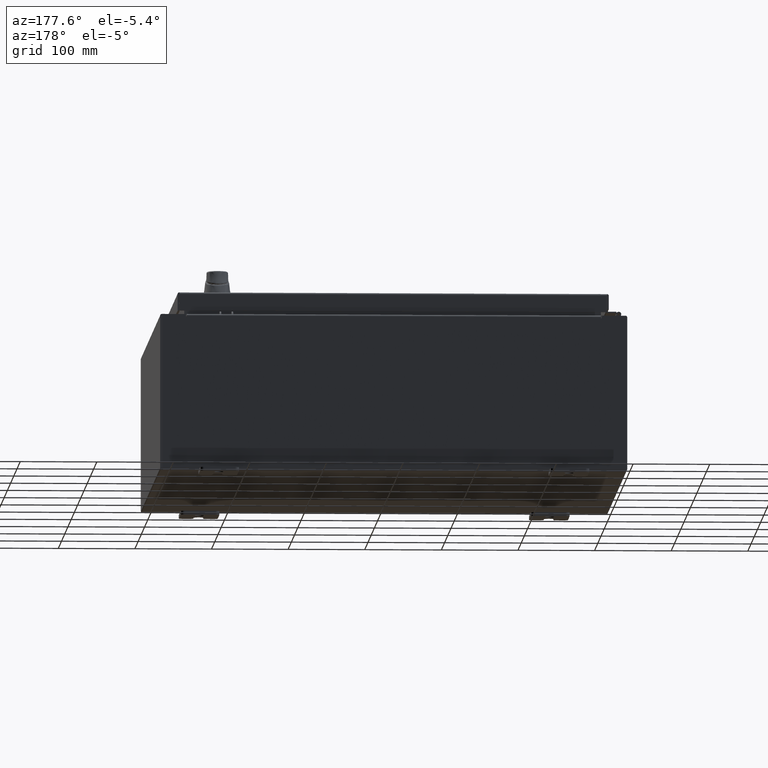
[diagram: clean part render]
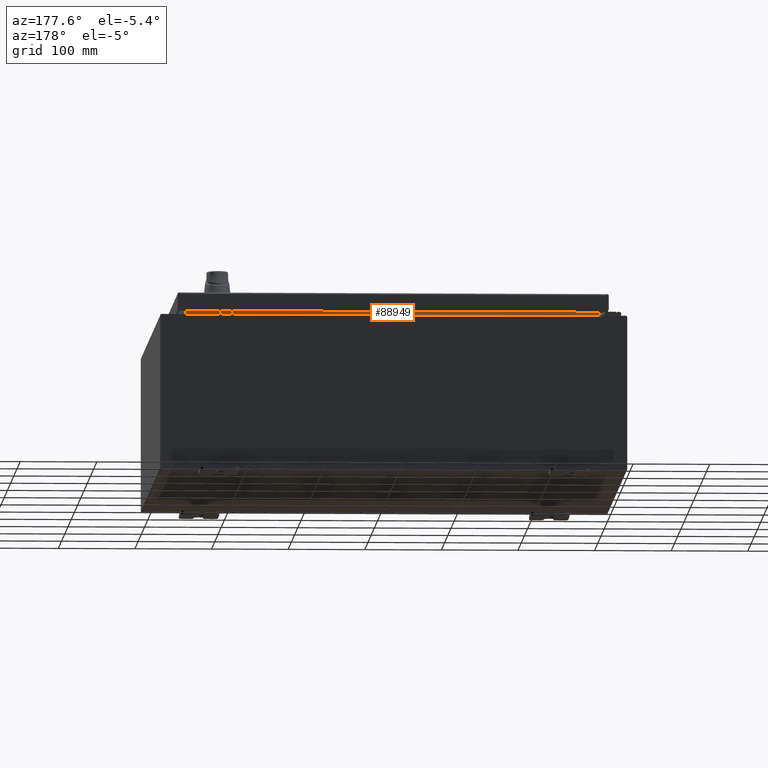
[diagram: same view with one face highlighted and labeled with its STEP entity id]
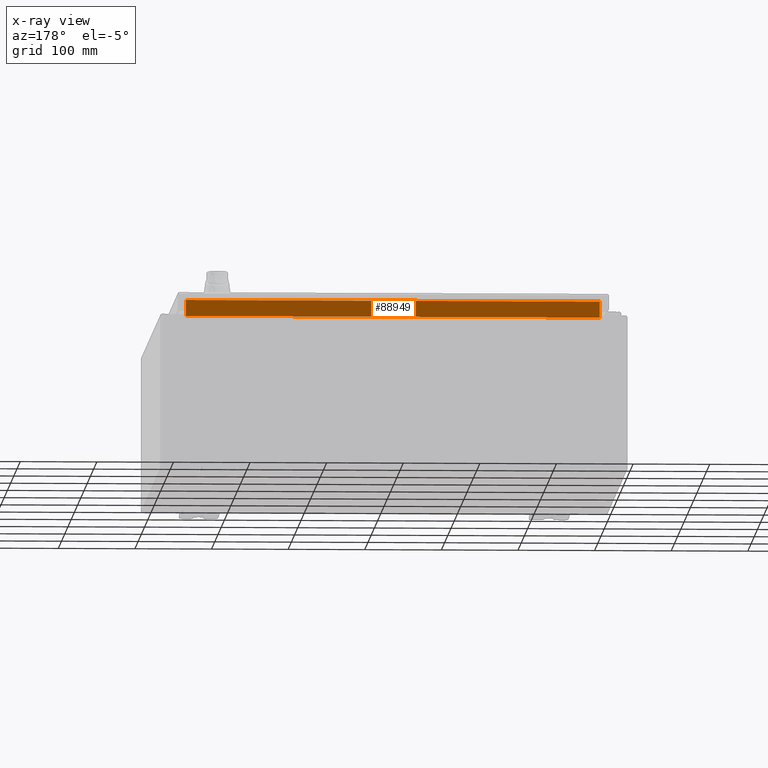
[diagram: x-ray of the same camera — body ghosted, the highlighted face saturated]
A machine part, auxiliary view. The second image highlights one B-rep face of the part: STEP entity #88949.
The next image is the same camera in x-ray: the body ghosted, the highlighted face saturated — about 0% of this face is hidden behind the body in this view.
In plain terms, the highlighted planar face has unit normal (0, 1, 0).
Its self-contained STEP definition (entity closure, byte-faithful):
#4084 = CARTESIAN_POINT ( 'NONE',  ( 10.63720000000000200, -1.300299999999999800, 4.837600000000003700 ) ) ;
#7743 = DIRECTION ( 'NONE',  ( -0.0000000000000000000, -0.0000000000000000000, 1.000000000000000000 ) ) ;
#8767 = EDGE_LOOP ( 'NONE', ( #15267, #103115, #102428, #17805 ) ) ;
#8937 = DIRECTION ( 'NONE',  ( 0.0000000000000000000, -0.0000000000000000000, 1.000000000000000000 ) ) ;
#10606 = DIRECTION ( 'NONE',  ( -1.000000000000000000, -0.0000000000000000000, -0.0000000000000000000 ) ) ;
#12417 = CARTESIAN_POINT ( 'NONE',  ( -10.63720000000000400, -1.300299999999999800, 4.013000000000003500 ) ) ;
#15267 = ORIENTED_EDGE ( 'NONE', *, *, #32536, .F. ) ;
#15415 = LINE ( 'NONE', #103845, #58748 ) ;
#17805 = ORIENTED_EDGE ( 'NONE', *, *, #77541, .F. ) ;
#18125 = FACE_OUTER_BOUND ( 'NONE', #8767, .T. ) ;
#21820 = EDGE_CURVE ( 'NONE', #84442, #41568, #97951, .T. ) ;
#28777 = VECTOR ( 'NONE', #7743, 39.37007874015748100 ) ;
#32536 = EDGE_CURVE ( 'NONE', #72441, #81225, #82946, .T. ) ;
#35631 = CARTESIAN_POINT ( 'NONE',  ( 10.63720000000000400, -1.300299999999999800, 4.013000000000003500 ) ) ;
#39814 = DIRECTION ( 'NONE',  ( -0.0000000000000000000, -0.0000000000000000000, -1.000000000000000000 ) ) ;
#41568 = VERTEX_POINT ( 'NONE', #4084 ) ;
#43288 = CARTESIAN_POINT ( 'NONE',  ( 0.0000000000000000000, -1.300299999999999800, 0.0000000000000000000 ) ) ;
#44297 = CARTESIAN_POINT ( 'NONE',  ( -10.63720000000000200, -1.300299999999999300, 4.837600000000003700 ) ) ;
#46705 = LINE ( 'NONE', #96959, #90104 ) ;
#48852 = AXIS2_PLACEMENT_3D ( 'NONE', #43288, #60777, #8937 ) ;
#58748 = VECTOR ( 'NONE', #69363, 39.37007874015748100 ) ;
#60032 = PLANE ( 'NONE',  #48852 ) ;
#60777 = DIRECTION ( 'NONE',  ( 0.0000000000000000000, 1.000000000000000000, 0.0000000000000000000 ) ) ;
#62646 = VECTOR ( 'NONE', #39814, 39.37007874015748100 ) ;
#69363 = DIRECTION ( 'NONE',  ( 1.000000000000000000, 0.0000000000000000000, -2.568202152506545800E-017 ) ) ;
#72441 = VERTEX_POINT ( 'NONE', #44297 ) ;
#77541 = EDGE_CURVE ( 'NONE', #81225, #84442, #15415, .T. ) ;
#81225 = VERTEX_POINT ( 'NONE', #12417 ) ;
#82946 = LINE ( 'NONE', #91777, #62646 ) ;
#84442 = VERTEX_POINT ( 'NONE', #35631 ) ;
#86666 = EDGE_CURVE ( 'NONE', #41568, #72441, #46705, .T. ) ;
#88949 = ADVANCED_FACE ( 'NONE', ( #18125 ), #60032, .T. ) ;
#90104 = VECTOR ( 'NONE', #10606, 39.37007874015748100 ) ;
#91777 = CARTESIAN_POINT ( 'NONE',  ( -10.63720000000000200, -1.300299999999999800, 4.000000000000004400 ) ) ;
#96959 = CARTESIAN_POINT ( 'NONE',  ( 10.63720000000000200, -1.300299999999999300, 4.837600000000003700 ) ) ;
#97951 = LINE ( 'NONE', #111518, #28777 ) ;
#102428 = ORIENTED_EDGE ( 'NONE', *, *, #21820, .F. ) ;
#103115 = ORIENTED_EDGE ( 'NONE', *, *, #86666, .F. ) ;
#103845 = CARTESIAN_POINT ( 'NONE',  ( -10.63720000000000200, -1.300299999999999800, 4.013000000000003500 ) ) ;
#111518 = CARTESIAN_POINT ( 'NONE',  ( 10.63720000000000200, -1.300299999999999800, 4.925300000000004500 ) ) ;